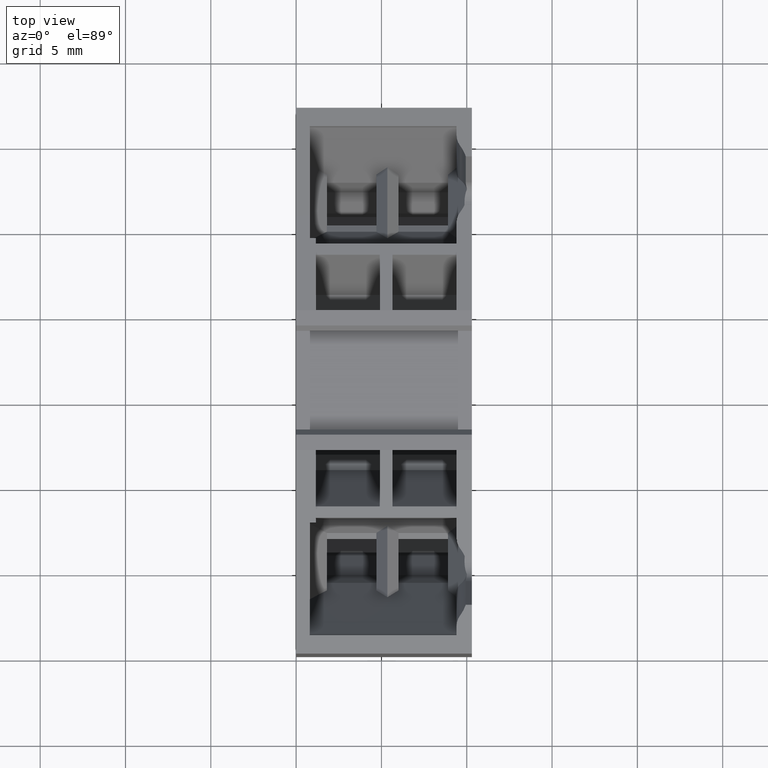
[diagram: clean part render]
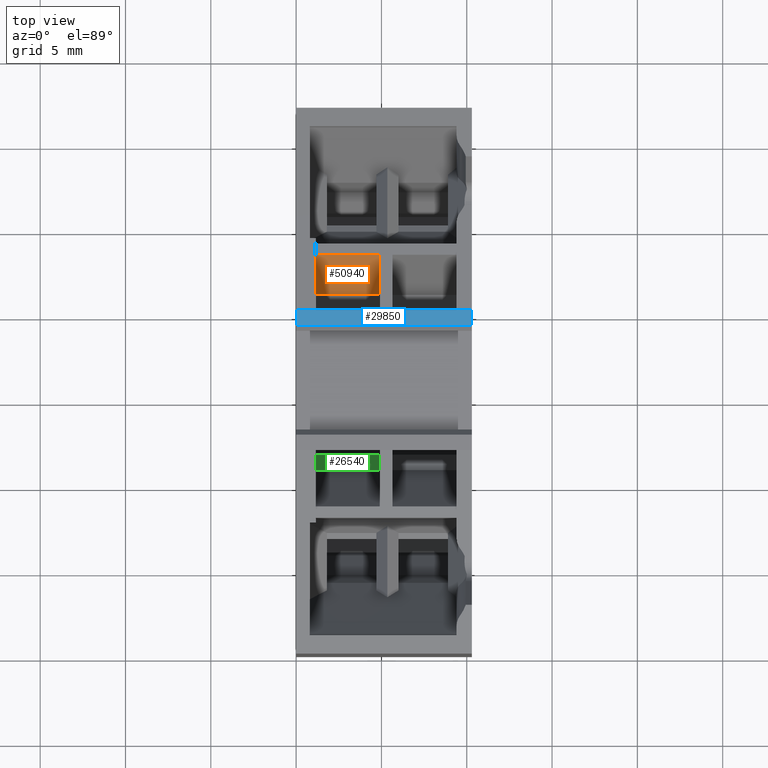
[diagram: same view with three faces highlighted in distinct colors, each labeled with its STEP entity id]
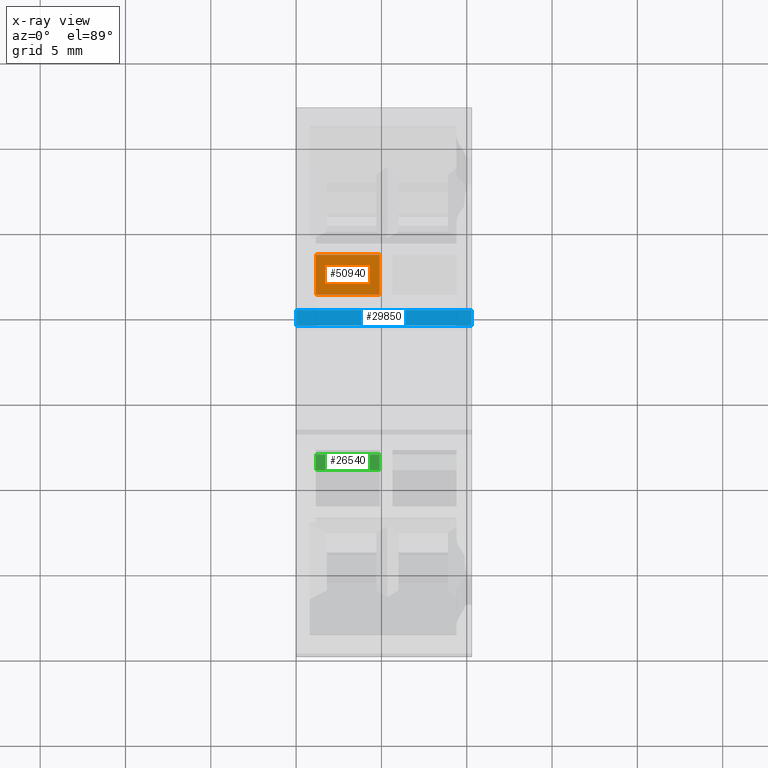
[diagram: x-ray of the same camera — body ghosted, the three highlighted faces saturated]
A machine part, top view with three faces highlighted in distinct colors.
The next image is the same camera in x-ray (body ghosted, the three faces saturated) — at least one of them is partly hidden behind the body in this view.
Their STEP definitions:

[orange] entity #50940 — the highlighted planar face has unit normal (-0, 0.9418, -0.3361).
#29980=CARTESIAN_POINT('',(69.1401753504931,155.486710066203,
64.1999999999998));
#29990=DIRECTION('',(-0.822764161309866,-0.56838291218515,
-1.63757896132211E-15));
#30000=VECTOR('',#29990,1.);
#30010=LINE('',#29980,#30000);
#30020=CARTESIAN_POINT('',(0.18199544097968,107.848938564881,
64.1999999999997));
#30030=VERTEX_POINT('',#30020);
#30040=CARTESIAN_POINT('',(-5.29505846833685,104.065273697641,
64.1999999999997));
#30050=VERTEX_POINT('',#30040);
#30060=EDGE_CURVE('',#30030,#30050,#30010,.T.);
#31040=CARTESIAN_POINT('',(-5.29505846833689,104.065273697641,
60.4499999999999));
#31050=VERTEX_POINT('',#31040);
#31620=CARTESIAN_POINT('',(0.181995440979652,107.848938564881,
60.4499999999999));
#31630=VERTEX_POINT('',#31620);
#31660=CARTESIAN_POINT('',(69.1401753504931,155.486710066203,
60.4500000000002));
#31670=DIRECTION('',(0.822764161309866,0.56838291218515,
3.3584246494911E-15));
#31680=VECTOR('',#31670,1.);
#31690=LINE('',#31660,#31680);
#31700=EDGE_CURVE('',#31050,#31630,#31690,.T.);
#33000=CARTESIAN_POINT('',(-5.29505846833683,104.065273697641,
55.0499999999999));
#33010=DIRECTION('',(1.02201970563684E-16,7.06032863263842E-17,1.));
#33020=VECTOR('',#33010,1.);
#33030=LINE('',#33000,#33020);
#33040=EDGE_CURVE('',#31050,#30050,#33030,.T.);
#34330=CARTESIAN_POINT('',(-0.318730012121531,107.50302681444,
55.0499999999999));
#34340=DIRECTION('',(0.56838291218515,-0.822764161309866,
4.14236653944122E-33));
#34350=DIRECTION('',(0.822764161309866,0.56838291218515,
-1.8230973179559E-64));
#34360=AXIS2_PLACEMENT_3D('',#34330,#34340,#34350);
#34370=PLANE('',#34360);
#50430=CARTESIAN_POINT('',(0.181995440979652,107.848938564881,
55.0499999999999));
#50440=DIRECTION('',(4.14455412124595E-15,-8.88802499542333E-15,1.));
#50450=VECTOR('',#50440,1.);
#50460=LINE('',#50430,#50450);
#50470=EDGE_CURVE('',#31630,#30030,#50460,.T.);
#50880=ORIENTED_EDGE('',*,*,#31700,.F.);
#50890=ORIENTED_EDGE('',*,*,#50470,.F.);
#50900=ORIENTED_EDGE('',*,*,#30060,.F.);
#50910=ORIENTED_EDGE('',*,*,#33040,.T.);
#50920=EDGE_LOOP('',(#50910,#50900,#50890,#50880));
#50930=FACE_OUTER_BOUND('',#50920,.T.);
#50940=ADVANCED_FACE('',(#50930),#34370,.F.);

[blue] entity #29850 — the highlighted planar face has unit normal (0, 0, -1).
#120=CARTESIAN_POINT('',(-8.24581620230512,107.600810676199,
55.0499999999999));
#130=VERTEX_POINT('',#120);
#160=CARTESIAN_POINT('',(-18.4441107971479,145.661364254707,
55.0499999999999));
#170=DIRECTION('',(0.258819045102521,-0.965925826289069,
-1.43743870729123E-64));
#180=VECTOR('',#170,1.);
#190=LINE('',#160,#180);
#200=CARTESIAN_POINT('',(-8.01189244908608,106.727795344088,
55.0499999999999));
#210=VERTEX_POINT('',#200);
#220=EDGE_CURVE('',#130,#210,#190,.T.);
#3510=CARTESIAN_POINT('',(-8.0118924490861,106.727795344088,
65.3499999999999));
#3520=VERTEX_POINT('',#3510);
#3550=CARTESIAN_POINT('',(-11.1630131172655,118.487937778514,
65.3499999999999));
#3560=DIRECTION('',(0.258819045102521,-0.965925826289069,
5.05263796480701E-31));
#3570=VECTOR('',#3560,1.);
#3580=LINE('',#3550,#3570);
#3590=CARTESIAN_POINT('',(-8.24581620230512,107.600810676199,
65.3499999999999));
#3600=VERTEX_POINT('',#3590);
#3610=EDGE_CURVE('',#3600,#3520,#3580,.T.);
#28950=CARTESIAN_POINT('',(-8.01189244909114,106.727795344107,
64.1999999999997));
#28960=VERTEX_POINT('',#28950);
#28990=CARTESIAN_POINT('',(-8.01189244908606,106.727795344088,
6.34999999999992));
#29000=DIRECTION('',(-4.11777361562876E-46,8.83059401580754E-46,1.));
#29010=VECTOR('',#29000,1.);
#29020=LINE('',#28990,#29010);
#29030=EDGE_CURVE('',#28960,#3520,#29020,.T.);
#29160=CARTESIAN_POINT('',(-8.01189244909114,106.727795344107,
55.9499999999997));
#29170=VERTEX_POINT('',#29160);
#29180=EDGE_CURVE('',#210,#29170,#29020,.T.);
#29620=CARTESIAN_POINT('',(-6.66603341455331,101.704981047387,
60.1999999999999));
#29630=DIRECTION('',(0.965925826289068,0.258819045102521,
1.69193797128819E-46));
#29640=DIRECTION('',(-0.258819045102521,0.965925826289069,
8.75811540203011E-47));
#29650=AXIS2_PLACEMENT_3D('',#29620,#29630,#29640);
#29660=PLANE('',#29650);
#29670=CARTESIAN_POINT('',(-8.01189244909114,106.727795344107,
6.34999999999992));
#29680=DIRECTION('',(1.222218780395E-16,-4.56138258639902E-16,1.));
#29690=VECTOR('',#29680,1.);
#29700=LINE('',#29670,#29690);
#29710=EDGE_CURVE('',#29170,#28960,#29700,.T.);
#29720=ORIENTED_EDGE('',*,*,#29710,.T.);
#29730=ORIENTED_EDGE('',*,*,#29180,.T.);
#29740=ORIENTED_EDGE('',*,*,#220,.T.);
#29750=CARTESIAN_POINT('',(-8.24581620230518,107.600810676199,
6.34999999999992));
#29760=DIRECTION('',(1.39339141917538E-15,-5.20020757119304E-15,1.));
#29770=VECTOR('',#29760,1.);
#29780=LINE('',#29750,#29770);
#29790=EDGE_CURVE('',#130,#3600,#29780,.T.);
#29800=ORIENTED_EDGE('',*,*,#29790,.F.);
#29810=ORIENTED_EDGE('',*,*,#3610,.F.);
#29820=ORIENTED_EDGE('',*,*,#29030,.T.);
#29830=EDGE_LOOP('',(#29820,#29810,#29800,#29740,#29730,#29720));
#29840=FACE_OUTER_BOUND('',#29830,.T.);
#29850=ADVANCED_FACE('',(#29840),#29660,.F.);

[green] entity #26540 — the highlighted planar face has unit normal (-0, 0.5752, 0.818).
#12670=CARTESIAN_POINT('',(-2.47752193997609,117.774392554208,
60.4499999999999));
#12680=VERTEX_POINT('',#12670);
#12710=CARTESIAN_POINT('',(-18.7396019022186,131.364210315734,
60.4499999999997));
#12720=DIRECTION('',(0.767336757449239,-0.641244337727273,
8.18789480661053E-15));
#12730=VECTOR('',#12720,1.);
#12740=LINE('',#12710,#12730);
#12750=CARTESIAN_POINT('',(-1.61112172106012,117.05036333341,
60.4499999999999));
#12760=VERTEX_POINT('',#12750);
#12770=EDGE_CURVE('',#12680,#12760,#12740,.T.);
#14460=CARTESIAN_POINT('',(-1.6111217210601,117.05036333341,
64.1999999999997));
#14470=VERTEX_POINT('',#14460);
#14500=CARTESIAN_POINT('',(-12.6670245257653,126.289507689725,
64.1999999999996));
#14510=DIRECTION('',(0.767336757449239,-0.641244337727273,
6.96664947952286E-15));
#14520=VECTOR('',#14510,1.);
#14530=LINE('',#14500,#14520);
#14540=CARTESIAN_POINT('',(-2.4775219399761,117.774392554208,
64.1999999999997));
#14550=VERTEX_POINT('',#14540);
#14560=EDGE_CURVE('',#14550,#14470,#14530,.T.);
#16450=CARTESIAN_POINT('',(-2.47752193997609,117.774392554208,
55.0499999999999));
#16460=DIRECTION('',(-8.54723341359409E-16,9.76953249613011E-15,1.));
#16470=VECTOR('',#16460,1.);
#16480=LINE('',#16450,#16470);
#16490=EDGE_CURVE('',#12680,#14550,#16480,.T.);
#25680=CARTESIAN_POINT('',(-1.61112172106012,117.05036333341,
65.3499999999999));
#25690=DIRECTION('',(-8.54723341357631E-16,9.76953249612862E-15,1.));
#25700=VECTOR('',#25690,1.);
#25710=LINE('',#25680,#25700);
#25840=CARTESIAN_POINT('',(-1.6111217210601,117.05036333341,
55.9499999999997));
#25850=DIRECTION('',(-0.641244337727273,-0.767336757449238,
6.94843488440539E-15));
#25860=DIRECTION('',(0.767336757449239,-0.641244337727273,
6.92051803265861E-15));
#25870=AXIS2_PLACEMENT_3D('',#25840,#25850,#25860);
#25880=PLANE('',#25870);
#26470=ORIENTED_EDGE('',*,*,#16490,.F.);
#26480=ORIENTED_EDGE('',*,*,#14560,.F.);
#26490=EDGE_CURVE('',#12760,#14470,#25710,.T.);
#26500=ORIENTED_EDGE('',*,*,#26490,.T.);
#26510=ORIENTED_EDGE('',*,*,#12770,.T.);
#26520=EDGE_LOOP('',(#26510,#26500,#26480,#26470));
#26530=FACE_OUTER_BOUND('',#26520,.T.);
#26540=ADVANCED_FACE('',(#26530),#25880,.T.);